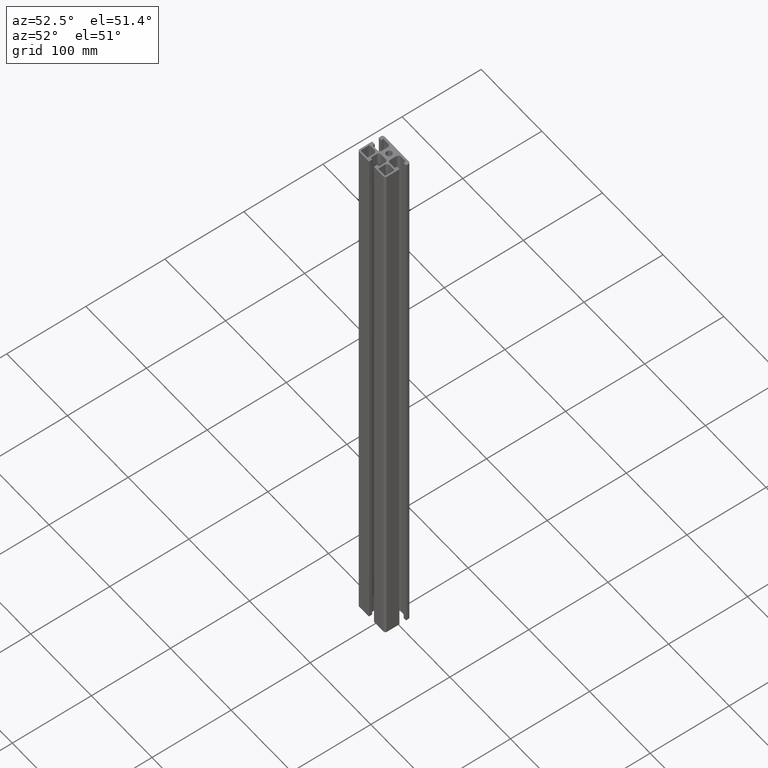
[diagram: clean part render]
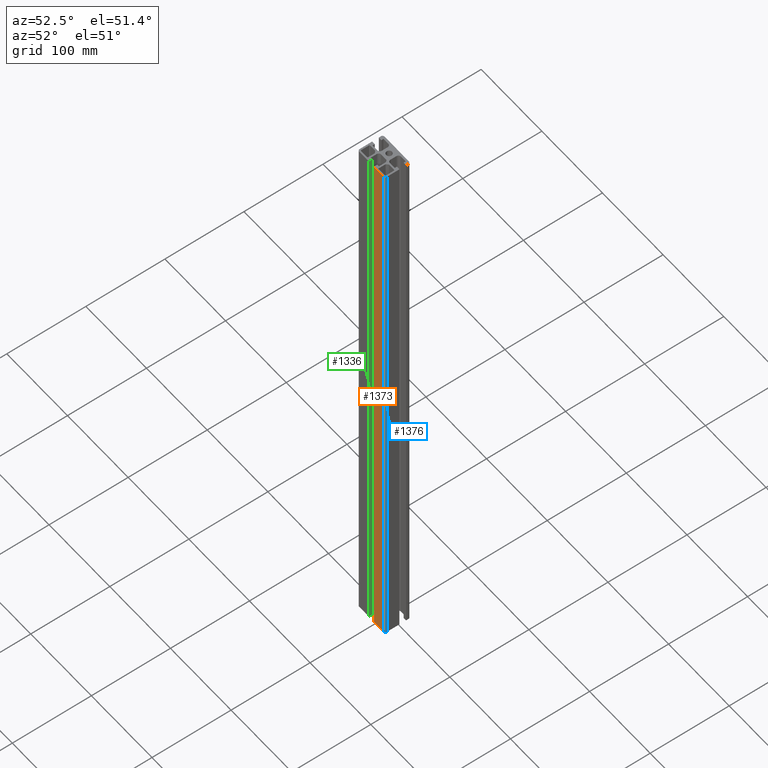
[diagram: same view with three faces highlighted in distinct colors, each labeled with its STEP entity id]
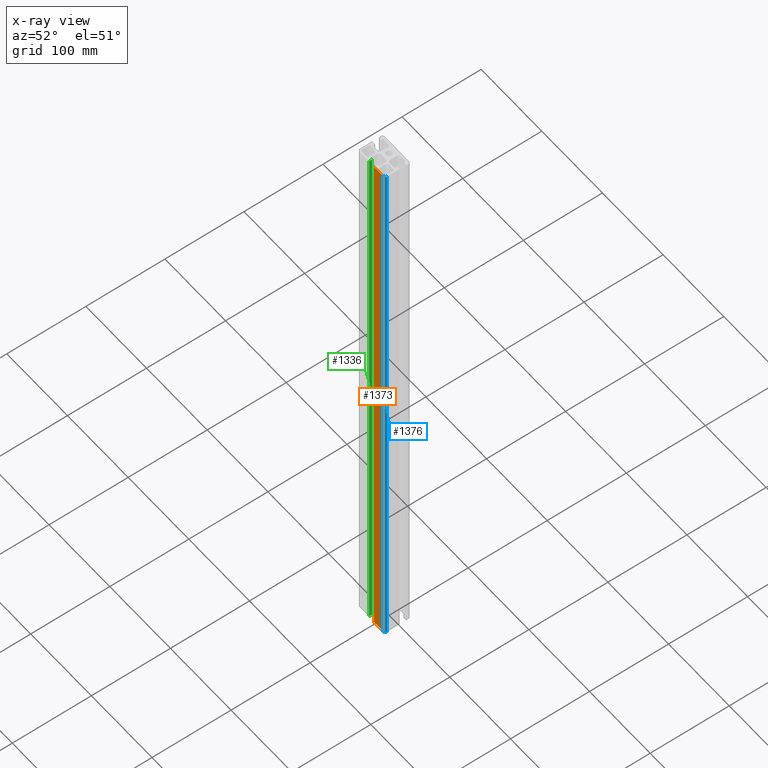
[diagram: x-ray of the same camera — body ghosted, the three highlighted faces saturated]
A machine part, auxiliary view with three faces highlighted in distinct colors.
The next image is the same camera in x-ray (body ghosted, the three faces saturated) — at least one of them is partly hidden behind the body in this view.
Their STEP definitions:

[orange] entity #1373 — the highlighted planar face has unit normal (0, -1, 0).
#166=FACE_OUTER_BOUND('',#235,.T.);
#235=EDGE_LOOP('',(#1105,#1106,#1107,#1108));
#324=LINE('',#2137,#467);
#379=LINE('',#2293,#522);
#380=LINE('',#2295,#523);
#381=LINE('',#2296,#524);
#467=VECTOR('',#1730,10.);
#522=VECTOR('',#1881,10.);
#523=VECTOR('',#1882,10.);
#524=VECTOR('',#1883,10.);
#606=VERTEX_POINT('',#2133);
#607=VERTEX_POINT('',#2135);
#660=VERTEX_POINT('',#2292);
#661=VERTEX_POINT('',#2294);
#772=EDGE_CURVE('',#606,#607,#324,.T.);
#849=EDGE_CURVE('',#660,#607,#379,.T.);
#850=EDGE_CURVE('',#660,#661,#380,.T.);
#851=EDGE_CURVE('',#661,#606,#381,.T.);
#1105=ORIENTED_EDGE('',*,*,#772,.T.);
#1106=ORIENTED_EDGE('',*,*,#849,.F.);
#1107=ORIENTED_EDGE('',*,*,#850,.T.);
#1108=ORIENTED_EDGE('',*,*,#851,.T.);
#1308=PLANE('',#1515);
#1373=ADVANCED_FACE('',(#166),#1308,.T.);
#1515=AXIS2_PLACEMENT_3D('',#2291,#1879,#1880);
#1730=DIRECTION('',(0.,0.,-1.));
#1879=DIRECTION('center_axis',(0.,-1.,0.));
#1880=DIRECTION('ref_axis',(1.,0.,0.));
#1881=DIRECTION('',(-1.,0.,0.));
#1882=DIRECTION('',(0.,0.,1.));
#1883=DIRECTION('',(-1.,0.,0.));
#2133=CARTESIAN_POINT('',(4.45000000000057,-22.5,732.));
#2135=CARTESIAN_POINT('',(4.45000000000057,-22.5,0.));
#2137=CARTESIAN_POINT('',(4.45000000000061,-22.5,0.));
#2291=CARTESIAN_POINT('Origin',(-20.,-22.5,0.));
#2292=CARTESIAN_POINT('',(20.,-22.5,0.));
#2293=CARTESIAN_POINT('',(-10.,-22.5,0.));
#2294=CARTESIAN_POINT('',(20.,-22.5,732.));
#2295=CARTESIAN_POINT('',(20.,-22.5,0.));
#2296=CARTESIAN_POINT('',(-10.,-22.5,732.));

[blue] entity #1376 — the highlighted cylindrical surface (edge-blend (fillet) strip) has radius 2.5 mm, axis along (0, 0, 1).
#74=CIRCLE('',#1521,2.5);
#75=CIRCLE('',#1523,2.5);
#104=CYLINDRICAL_SURFACE('',#1522,2.5);
#169=FACE_OUTER_BOUND('',#241,.T.);
#241=EDGE_LOOP('',(#1180,#1181,#1182,#1183));
#377=LINE('',#2289,#520);
#380=LINE('',#2295,#523);
#520=VECTOR('',#1877,10.);
#523=VECTOR('',#1882,10.);
#658=VERTEX_POINT('',#2286);
#659=VERTEX_POINT('',#2288);
#660=VERTEX_POINT('',#2292);
#661=VERTEX_POINT('',#2294);
#847=EDGE_CURVE('',#659,#658,#377,.T.);
#850=EDGE_CURVE('',#660,#661,#380,.T.);
#861=EDGE_CURVE('',#658,#661,#74,.T.);
#862=EDGE_CURVE('',#659,#660,#75,.T.);
#1180=ORIENTED_EDGE('',*,*,#861,.T.);
#1181=ORIENTED_EDGE('',*,*,#850,.F.);
#1182=ORIENTED_EDGE('',*,*,#862,.F.);
#1183=ORIENTED_EDGE('',*,*,#847,.T.);
#1376=ADVANCED_FACE('',(#169),#104,.T.);
#1521=AXIS2_PLACEMENT_3D('',#2314,#1900,#1901);
#1522=AXIS2_PLACEMENT_3D('',#2315,#1902,#1903);
#1523=AXIS2_PLACEMENT_3D('',#2316,#1904,#1905);
#1877=DIRECTION('',(0.,0.,1.));
#1882=DIRECTION('',(0.,0.,1.));
#1900=DIRECTION('center_axis',(0.,0.,-1.));
#1901=DIRECTION('ref_axis',(0.,-1.,0.));
#1902=DIRECTION('center_axis',(0.,0.,1.));
#1903=DIRECTION('ref_axis',(0.,-1.,0.));
#1904=DIRECTION('center_axis',(0.,0.,-1.));
#1905=DIRECTION('ref_axis',(0.,-1.,0.));
#2286=CARTESIAN_POINT('',(22.5,-20.,732.));
#2288=CARTESIAN_POINT('',(22.5,-20.,0.));
#2289=CARTESIAN_POINT('',(22.5,-20.,0.));
#2292=CARTESIAN_POINT('',(20.,-22.5,0.));
#2294=CARTESIAN_POINT('',(20.,-22.5,732.));
#2295=CARTESIAN_POINT('',(20.,-22.5,0.));
#2314=CARTESIAN_POINT('Origin',(20.,-20.,732.));
#2315=CARTESIAN_POINT('Origin',(20.,-20.,0.));
#2316=CARTESIAN_POINT('Origin',(20.,-20.,0.));

[green] entity #1336 — the highlighted planar face has unit normal (-1, -0, 0).
#129=FACE_OUTER_BOUND('',#198,.T.);
#198=EDGE_LOOP('',(#957,#958,#959,#960));
#298=LINE('',#2066,#441);
#299=LINE('',#2068,#442);
#300=LINE('',#2070,#443);
#301=LINE('',#2071,#444);
#441=VECTOR('',#1662,10.);
#442=VECTOR('',#1663,10.);
#443=VECTOR('',#1664,10.);
#444=VECTOR('',#1665,10.);
#582=VERTEX_POINT('',#2064);
#583=VERTEX_POINT('',#2065);
#584=VERTEX_POINT('',#2067);
#585=VERTEX_POINT('',#2069);
#736=EDGE_CURVE('',#582,#583,#298,.T.);
#737=EDGE_CURVE('',#584,#582,#299,.T.);
#738=EDGE_CURVE('',#585,#584,#300,.T.);
#739=EDGE_CURVE('',#585,#583,#301,.T.);
#957=ORIENTED_EDGE('',*,*,#736,.F.);
#958=ORIENTED_EDGE('',*,*,#737,.F.);
#959=ORIENTED_EDGE('',*,*,#738,.F.);
#960=ORIENTED_EDGE('',*,*,#739,.T.);
#1287=PLANE('',#1446);
#1336=ADVANCED_FACE('',(#129),#1287,.F.);
#1446=AXIS2_PLACEMENT_3D('',#2063,#1660,#1661);
#1660=DIRECTION('center_axis',(-1.,-3.22114707279758E-13,0.));
#1661=DIRECTION('ref_axis',(0.,0.,1.));
#1662=DIRECTION('',(-3.22114707279758E-13,1.,0.));
#1663=DIRECTION('',(0.,0.,1.));
#1664=DIRECTION('',(3.22114707279758E-13,-1.,0.));
#1665=DIRECTION('',(0.,0.,1.));
#2063=CARTESIAN_POINT('Origin',(-4.15,-22.2,0.));
#2064=CARTESIAN_POINT('',(-4.15,-22.2,732.));
#2065=CARTESIAN_POINT('',(-4.15000000000119,-18.5,732.));
#2066=CARTESIAN_POINT('',(-4.15000000000253,-14.3500000000007,732.));
#2067=CARTESIAN_POINT('',(-4.15,-22.2,0.));
#2068=CARTESIAN_POINT('',(-4.15,-22.2,0.));
#2069=CARTESIAN_POINT('',(-4.15000000000119,-18.5,0.));
#2070=CARTESIAN_POINT('',(-4.15000000000253,-14.3500000000007,0.));
#2071=CARTESIAN_POINT('',(-4.15000000000119,-18.5,0.));